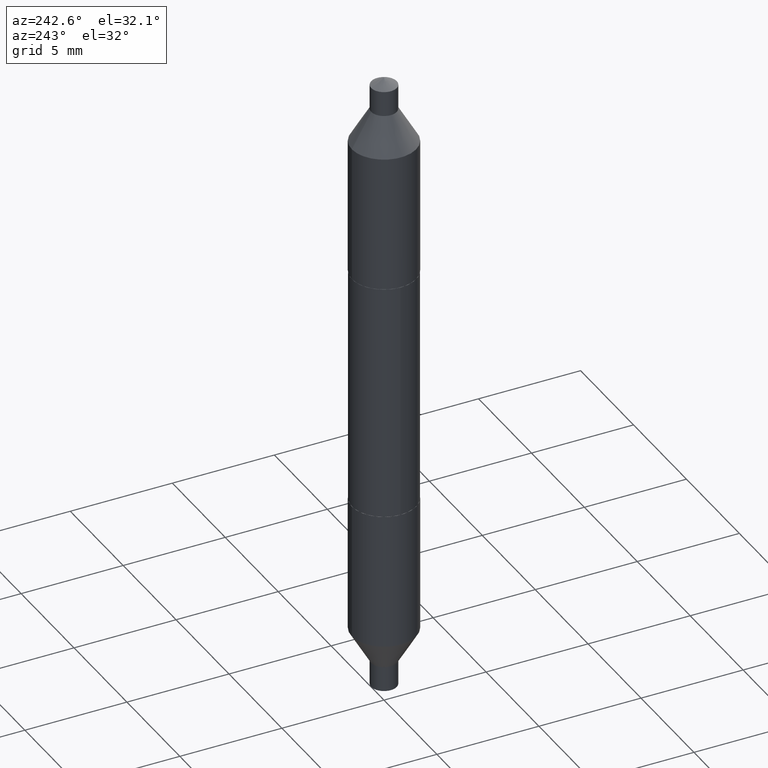
[diagram: clean part render]
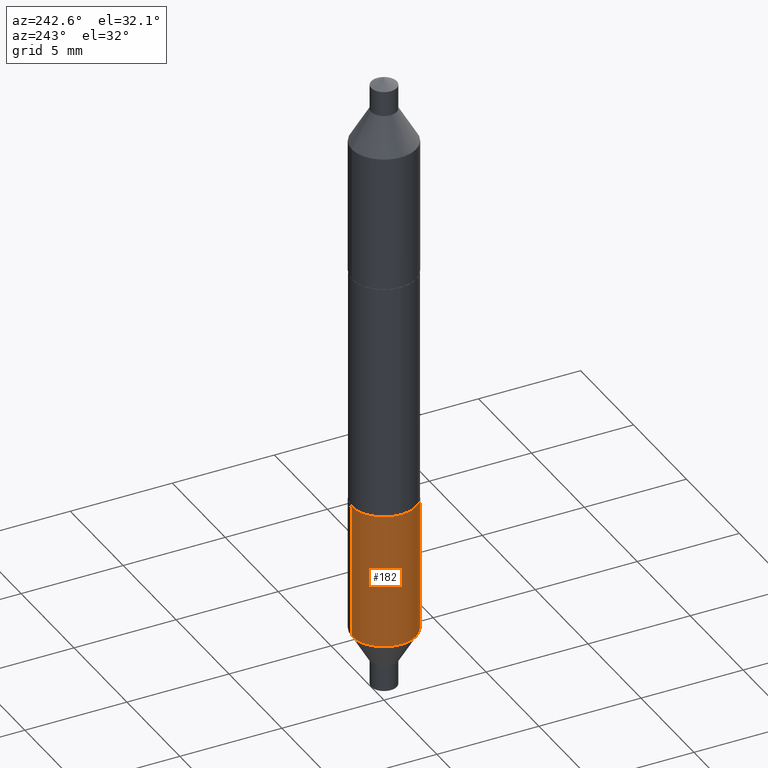
[diagram: same view with one face highlighted and labeled with its STEP entity id]
A machine part, auxiliary view. The second image highlights one B-rep face of the part: STEP entity #182.
In plain terms, the highlighted cylindrical surface (edge-blend (fillet) strip) has radius 1.5748 mm, axis along (-0, 0, 1).
Its self-contained STEP definition (entity closure, byte-faithful):
#4 = CARTESIAN_POINT ( 'NONE',  ( 4.405364961712676834E-16, 0.06199999999999919464, -0.2300000000000001488 ) ) ;
#11 = EDGE_CURVE ( 'NONE', #676, #297, #248, .T. ) ;
#21 = EDGE_CURVE ( 'NONE', #676, #54, #278, .T. ) ;
#43 = VERTEX_POINT ( 'NONE', #654 ) ;
#54 = VERTEX_POINT ( 'NONE', #593 ) ;
#113 = AXIS2_PLACEMENT_3D ( 'NONE', #115, #332, #218 ) ;
#115 = CARTESIAN_POINT ( 'NONE',  ( 1.211186594922981775E-29, -1.707877200306588786E-15, -0.4922212997969229731 ) ) ;
#117 = DIRECTION ( 'NONE',  ( -2.473974349157782882E-29, 3.450659778871567200E-15, 1.000000000000000000 ) ) ;
#182 = ADVANCED_FACE ( 'NONE', ( #447 ), #550, .T. ) ;
#191 = CARTESIAN_POINT ( 'NONE',  ( 5.624578254225812687E-30, -8.030407079339232947E-16, -0.2299999999999999267 ) ) ;
#218 = DIRECTION ( 'NONE',  ( -6.982962677686265922E-15, -1.000000000000000000, 3.304654831045479413E-15 ) ) ;
#234 = ORIENTED_EDGE ( 'NONE', *, *, #11, .T. ) ;
#245 = CARTESIAN_POINT ( 'NONE',  ( -4.329436860165363856E-16, -0.06200000000000171346, -0.4922212997969227510 ) ) ;
#248 = CIRCLE ( 'NONE', #113, 0.06200000000000000649 ) ;
#278 = LINE ( 'NONE', #4, #488 ) ;
#297 = VERTEX_POINT ( 'NONE', #245 ) ;
#311 = ORIENTED_EDGE ( 'NONE', *, *, #335, .T. ) ;
#316 = AXIS2_PLACEMENT_3D ( 'NONE', #191, #395, #672 ) ;
#330 = DIRECTION ( 'NONE',  ( -6.982962677686265922E-15, -1.000000000000000000, 3.304654831045479808E-15 ) ) ;
#332 = DIRECTION ( 'NONE',  ( -2.473974349157782882E-29, 3.450659778871567200E-15, 1.000000000000000000 ) ) ;
#335 = EDGE_CURVE ( 'NONE', #297, #43, #641, .T. ) ;
#395 = DIRECTION ( 'NONE',  ( -2.473974349157782882E-29, 3.450659778871567200E-15, 1.000000000000000000 ) ) ;
#403 = EDGE_LOOP ( 'NONE', ( #626, #234, #311, #695 ) ) ;
#410 = CARTESIAN_POINT ( 'NONE',  ( -4.329436860165427951E-16, -0.06200000000000079753, -0.2299999999999997324 ) ) ;
#431 = CARTESIAN_POINT ( 'NONE',  ( 5.624578254225812687E-30, -8.030407079339232947E-16, -0.2299999999999999267 ) ) ;
#445 = CIRCLE ( 'NONE', #595, 0.06199999999999999956 ) ;
#447 = FACE_OUTER_BOUND ( 'NONE', #403, .T. ) ;
#464 = DIRECTION ( 'NONE',  ( -2.473974349157782882E-29, 3.450659778871567200E-15, 1.000000000000000000 ) ) ;
#488 = VECTOR ( 'NONE', #597, 39.37007874015748143 ) ;
#537 = VECTOR ( 'NONE', #464, 39.37007874015748143 ) ;
#550 = CYLINDRICAL_SURFACE ( 'NONE', #316, 0.06199999999999999956 ) ;
#558 = CARTESIAN_POINT ( 'NONE',  ( 4.405364961712710854E-16, 0.06199999999999830647, -0.4922212997969231396 ) ) ;
#593 = CARTESIAN_POINT ( 'NONE',  ( 4.405364961712741915E-16, 0.06199999999999919464, -0.2300000000000001488 ) ) ;
#595 = AXIS2_PLACEMENT_3D ( 'NONE', #431, #117, #330 ) ;
#597 = DIRECTION ( 'NONE',  ( -2.473974349157782882E-29, 3.450659778871567200E-15, 1.000000000000000000 ) ) ;
#626 = ORIENTED_EDGE ( 'NONE', *, *, #21, .F. ) ;
#628 = EDGE_CURVE ( 'NONE', #54, #43, #445, .T. ) ;
#641 = LINE ( 'NONE', #410, #537 ) ;
#654 = CARTESIAN_POINT ( 'NONE',  ( -4.329436860165427951E-16, -0.06200000000000079753, -0.2299999999999997324 ) ) ;
#672 = DIRECTION ( 'NONE',  ( -6.982962677686265922E-15, -1.000000000000000000, 3.304654831045479808E-15 ) ) ;
#676 = VERTEX_POINT ( 'NONE', #558 ) ;
#695 = ORIENTED_EDGE ( 'NONE', *, *, #628, .F. ) ;